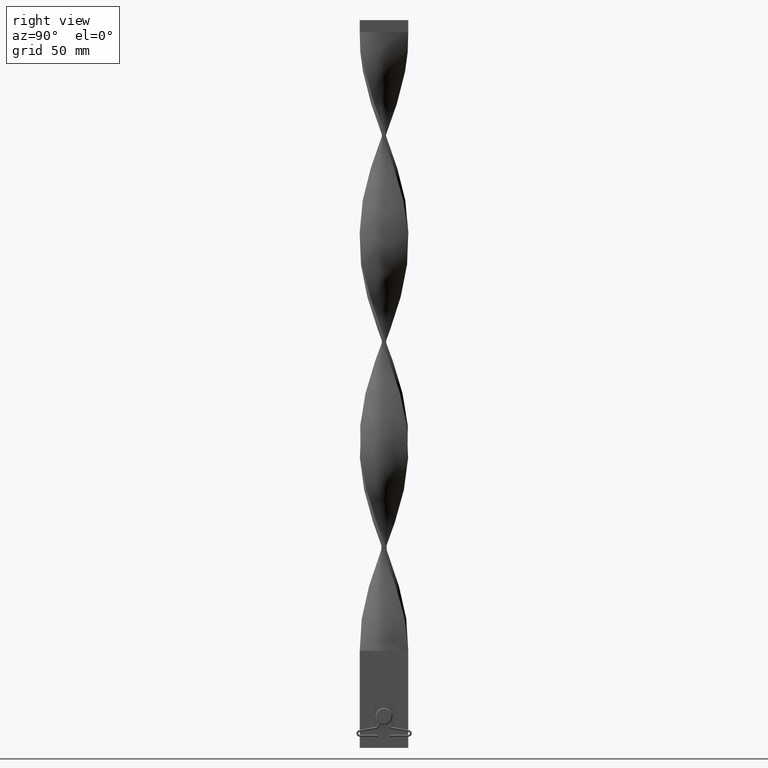
[diagram: clean part render]
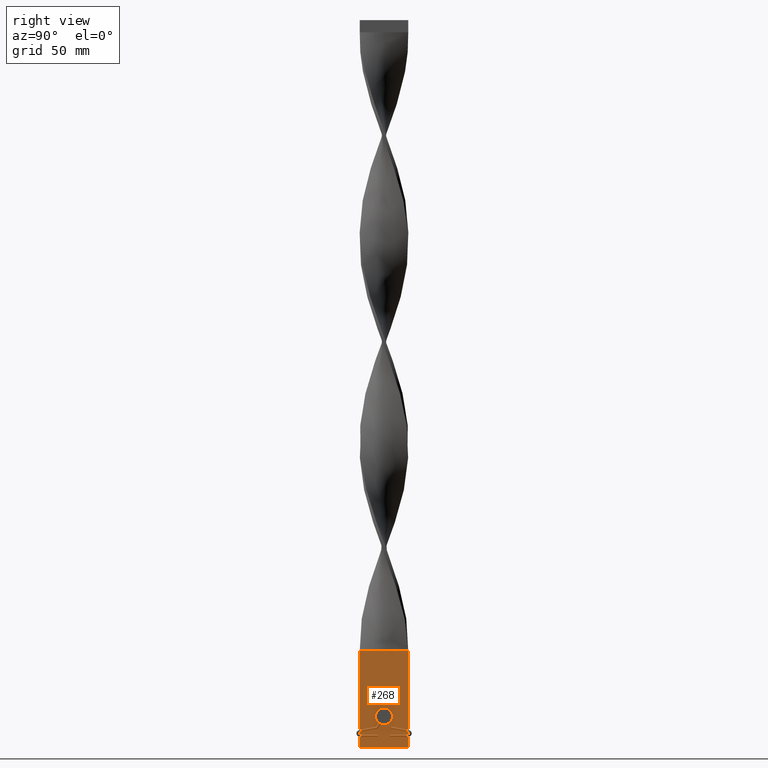
[diagram: same view with one face highlighted and labeled with its STEP entity id]
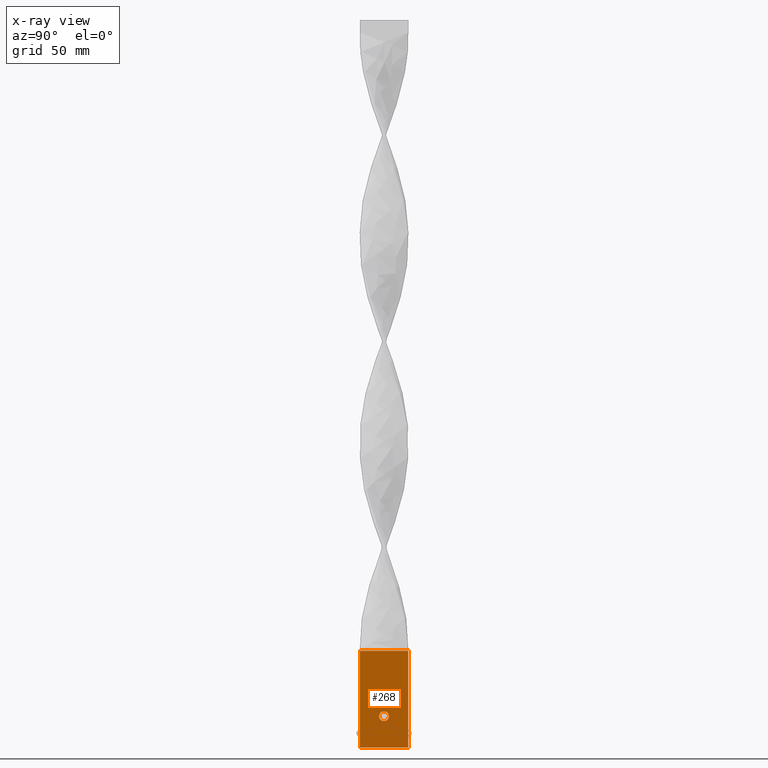
[diagram: x-ray of the same camera — body ghosted, the highlighted face saturated]
A machine part, right view. The second image highlights one B-rep face of the part: STEP entity #268.
The next image is the same camera in x-ray: the body ghosted, the highlighted face saturated — about 0% of this face is hidden behind the body in this view.
In plain terms, the highlighted planar face has unit normal (1, 0, -0).
Its self-contained STEP definition (entity closure, byte-faithful):
#209 = VECTOR ( 'NONE', #4033, 1000.000000000000000 ) ;
#268 = ADVANCED_FACE ( 'NONE', ( #3060, #1969 ), #1600, .T. ) ;
#337 = CARTESIAN_POINT ( 'NONE',  ( 0.7499999999999987788, 10.00000000000000000, 40.00000000000000000 ) ) ;
#356 = LINE ( 'NONE', #2213, #3803 ) ;
#359 = CARTESIAN_POINT ( 'NONE',  ( 0.7499999999999992228, 1.999999999999999556, 13.00000000000000000 ) ) ;
#524 = ORIENTED_EDGE ( 'NONE', *, *, #2944, .F. ) ;
#575 = DIRECTION ( 'NONE',  ( 1.000000000000000000, 3.794707603699264533E-16, 0.000000000000000000 ) ) ;
#616 = ORIENTED_EDGE ( 'NONE', *, *, #2314, .F. ) ;
#642 = VECTOR ( 'NONE', #3818, 1000.000000000000000 ) ;
#655 = DIRECTION ( 'NONE',  ( -3.794707603699266505E-16, 1.000000000000000000, 0.000000000000000000 ) ) ;
#656 = VERTEX_POINT ( 'NONE', #359 ) ;
#741 = EDGE_LOOP ( 'NONE', ( #4527, #3978 ) ) ;
#771 = EDGE_LOOP ( 'NONE', ( #524, #616, #3664, #1962 ) ) ;
#1083 = LINE ( 'NONE', #2558, #209 ) ;
#1085 = EDGE_CURVE ( 'NONE', #656, #2547, #4569, .T. ) ;
#1194 = VECTOR ( 'NONE', #2990, 1000.000000000000000 ) ;
#1294 = CARTESIAN_POINT ( 'NONE',  ( 0.7500000000000012212, -10.00000000000000000, 40.00000000000000000 ) ) ;
#1306 = CARTESIAN_POINT ( 'NONE',  ( 0.7499999999999987788, 10.00000000000000000, 40.00000000000000000 ) ) ;
#1335 = AXIS2_PLACEMENT_3D ( 'NONE', #3883, #4307, #655 ) ;
#1532 = CARTESIAN_POINT ( 'NONE',  ( 0.7499999999999987788, 10.00000000000000000, 40.00000000000000000 ) ) ;
#1600 = PLANE ( 'NONE',  #2252 ) ;
#1790 = CARTESIAN_POINT ( 'NONE',  ( 0.7500000000000000000, 8.944667923005414046E-17, 13.00000000000000000 ) ) ;
#1960 = LINE ( 'NONE', #2734, #642 ) ;
#1962 = ORIENTED_EDGE ( 'NONE', *, *, #3461, .T. ) ;
#1969 = FACE_OUTER_BOUND ( 'NONE', #771, .T. ) ;
#2076 = VERTEX_POINT ( 'NONE', #1294 ) ;
#2190 = DIRECTION ( 'NONE',  ( 1.192622389734054877E-16, -1.000000000000000000, 0.000000000000000000 ) ) ;
#2198 = DIRECTION ( 'NONE',  ( -3.794707603699266505E-16, 1.000000000000000000, 0.000000000000000000 ) ) ;
#2213 = CARTESIAN_POINT ( 'NONE',  ( 0.7499999999999987788, 10.00000000000000000, 40.00000000000000000 ) ) ;
#2225 = EDGE_CURVE ( 'NONE', #2547, #656, #2663, .T. ) ;
#2252 = AXIS2_PLACEMENT_3D ( 'NONE', #1306, #2781, #4544 ) ;
#2314 = EDGE_CURVE ( 'NONE', #3660, #4435, #3773, .T. ) ;
#2392 = CARTESIAN_POINT ( 'NONE',  ( 0.7500000000000007772, -1.999999999999999556, 13.00000000000000000 ) ) ;
#2510 = CARTESIAN_POINT ( 'NONE',  ( 0.7500000000000012212, -10.00000000000000000, 0.000000000000000000 ) ) ;
#2547 = VERTEX_POINT ( 'NONE', #2392 ) ;
#2558 = CARTESIAN_POINT ( 'NONE',  ( 0.7499999999999987788, 10.00000000000000000, 0.000000000000000000 ) ) ;
#2663 = CIRCLE ( 'NONE', #3503, 1.999999999999999556 ) ;
#2734 = CARTESIAN_POINT ( 'NONE',  ( 0.7500000000000012212, -10.00000000000000000, 40.00000000000000000 ) ) ;
#2781 = DIRECTION ( 'NONE',  ( 1.000000000000000000, 1.192622389734054877E-16, -0.000000000000000000 ) ) ;
#2865 = VERTEX_POINT ( 'NONE', #2510 ) ;
#2944 = EDGE_CURVE ( 'NONE', #4435, #2865, #1083, .T. ) ;
#2990 = DIRECTION ( 'NONE',  ( -0.000000000000000000, -0.000000000000000000, -1.000000000000000000 ) ) ;
#3060 = FACE_BOUND ( 'NONE', #741, .T. ) ;
#3461 = EDGE_CURVE ( 'NONE', #2076, #2865, #1960, .T. ) ;
#3503 = AXIS2_PLACEMENT_3D ( 'NONE', #1790, #575, #2198 ) ;
#3660 = VERTEX_POINT ( 'NONE', #337 ) ;
#3664 = ORIENTED_EDGE ( 'NONE', *, *, #4288, .T. ) ;
#3773 = LINE ( 'NONE', #1532, #1194 ) ;
#3803 = VECTOR ( 'NONE', #2190, 1000.000000000000000 ) ;
#3818 = DIRECTION ( 'NONE',  ( -0.000000000000000000, -0.000000000000000000, -1.000000000000000000 ) ) ;
#3883 = CARTESIAN_POINT ( 'NONE',  ( 0.7500000000000000000, 8.944667923005414046E-17, 13.00000000000000000 ) ) ;
#3978 = ORIENTED_EDGE ( 'NONE', *, *, #1085, .F. ) ;
#4033 = DIRECTION ( 'NONE',  ( 1.192622389734054877E-16, -1.000000000000000000, 0.000000000000000000 ) ) ;
#4288 = EDGE_CURVE ( 'NONE', #3660, #2076, #356, .T. ) ;
#4307 = DIRECTION ( 'NONE',  ( 1.000000000000000000, 3.794707603699264533E-16, 0.000000000000000000 ) ) ;
#4435 = VERTEX_POINT ( 'NONE', #4754 ) ;
#4527 = ORIENTED_EDGE ( 'NONE', *, *, #2225, .F. ) ;
#4544 = DIRECTION ( 'NONE',  ( -1.192622389734054877E-16, 1.000000000000000000, 0.000000000000000000 ) ) ;
#4569 = CIRCLE ( 'NONE', #1335, 1.999999999999999556 ) ;
#4754 = CARTESIAN_POINT ( 'NONE',  ( 0.7499999999999987788, 10.00000000000000000, 0.000000000000000000 ) ) ;